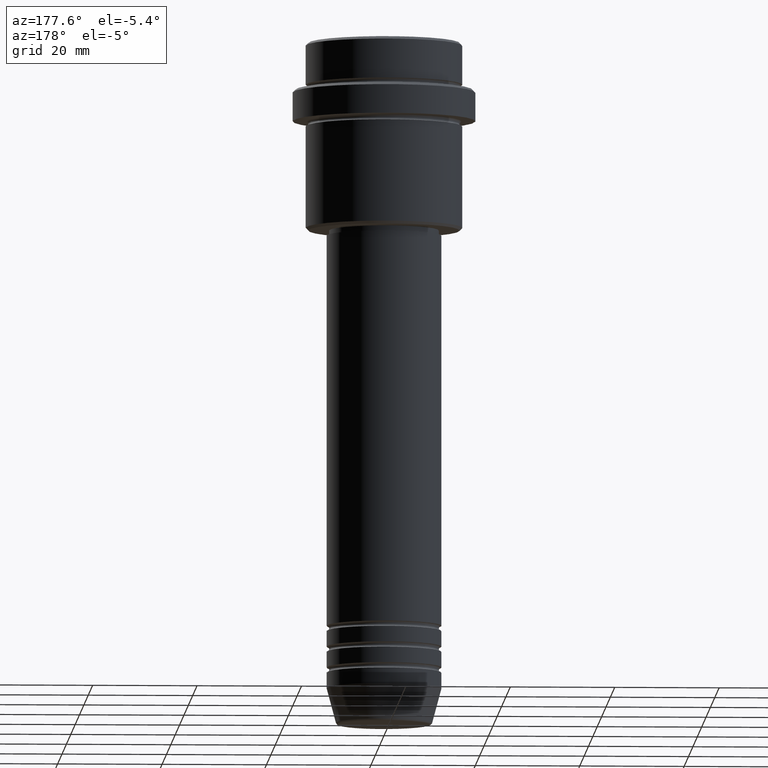
[diagram: clean part render]
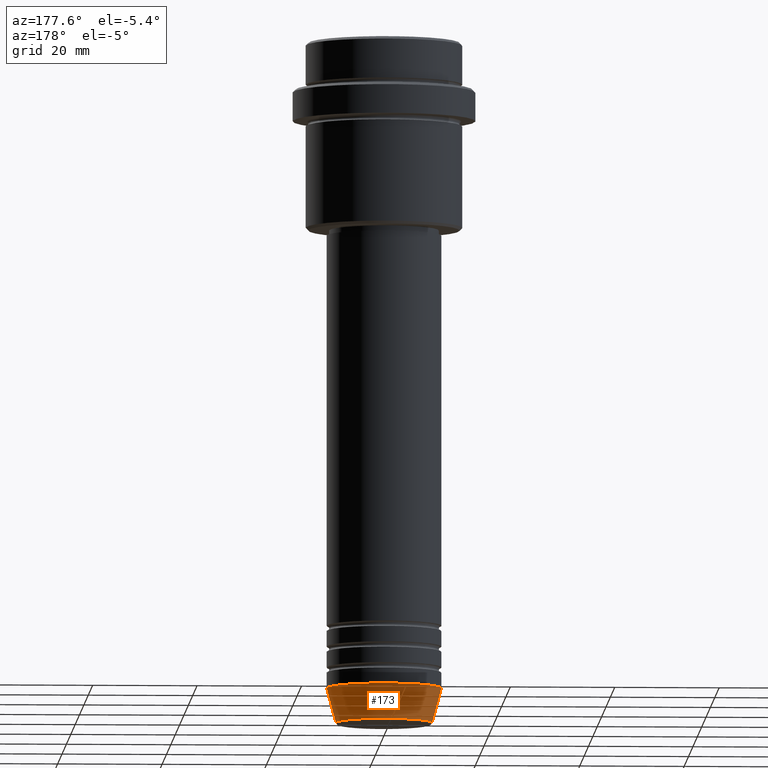
[diagram: same view with one face highlighted and labeled with its STEP entity id]
A machine part, auxiliary view. The second image highlights one B-rep face of the part: STEP entity #173.
In plain terms, the highlighted conical surface has half-angle 15 deg.
Its self-contained STEP definition (entity closure, byte-faithful):
#28 = CARTESIAN_POINT ( 'NONE',  ( 0.000000000000000000, 0.000000000000000000, -124.0000000000000000 ) ) ;
#37 = ORIENTED_EDGE ( 'NONE', *, *, #701, .T. ) ;
#59 = FACE_OUTER_BOUND ( 'NONE', #920, .T. ) ;
#71 = CARTESIAN_POINT ( 'NONE',  ( 9.223655072137187716, 0.000000000000000000, -130.6294095225512422 ) ) ;
#133 = EDGE_CURVE ( 'NONE', #925, #149, #402, .T. ) ;
#140 = CARTESIAN_POINT ( 'NONE',  ( 0.000000000000000000, 0.000000000000000000, -124.0000000000000000 ) ) ;
#149 = VERTEX_POINT ( 'NONE', #581 ) ;
#171 = LINE ( 'NONE', #622, #1289 ) ;
#173 = ADVANCED_FACE ( 'NONE', ( #59 ), #780, .T. ) ;
#191 = AXIS2_PLACEMENT_3D ( 'NONE', #140, #912, #617 ) ;
#236 = DIRECTION ( 'NONE',  ( -0.2588190451025213501, 3.169619151431772337E-17, 0.9659258262890680902 ) ) ;
#245 = AXIS2_PLACEMENT_3D ( 'NONE', #324, #771, #1395 ) ;
#262 = CARTESIAN_POINT ( 'NONE',  ( -9.223655072137187716, 1.238341722557647004E-15, -130.6294095225512422 ) ) ;
#324 = CARTESIAN_POINT ( 'NONE',  ( 0.000000000000000000, 0.000000000000000000, -130.6294095225512422 ) ) ;
#327 = AXIS2_PLACEMENT_3D ( 'NONE', #28, #905, #705 ) ;
#368 = CARTESIAN_POINT ( 'NONE',  ( -11.00000000000000000, 1.347111479062088405E-15, -124.0000000000000000 ) ) ;
#402 = CIRCLE ( 'NONE', #191, 11.00000000000000000 ) ;
#447 = VERTEX_POINT ( 'NONE', #262 ) ;
#521 = CIRCLE ( 'NONE', #245, 9.223655072137187716 ) ;
#580 = VECTOR ( 'NONE', #236, 1000.000000000000000 ) ;
#581 = CARTESIAN_POINT ( 'NONE',  ( -11.00000000000000000, 1.347111479062088405E-15, -124.0000000000000000 ) ) ;
#594 = VERTEX_POINT ( 'NONE', #71 ) ;
#613 = EDGE_CURVE ( 'NONE', #594, #925, #171, .T. ) ;
#617 = DIRECTION ( 'NONE',  ( 1.000000000000000000, 0.000000000000000000, 0.000000000000000000 ) ) ;
#622 = CARTESIAN_POINT ( 'NONE',  ( 11.00000000000000000, 0.000000000000000000, -124.0000000000000000 ) ) ;
#701 = EDGE_CURVE ( 'NONE', #594, #447, #521, .T. ) ;
#705 = DIRECTION ( 'NONE',  ( 1.000000000000000000, 0.000000000000000000, 0.000000000000000000 ) ) ;
#730 = DIRECTION ( 'NONE',  ( 0.2588190451025213501, 0.000000000000000000, 0.9659258262890680902 ) ) ;
#771 = DIRECTION ( 'NONE',  ( -0.000000000000000000, -0.000000000000000000, 1.000000000000000000 ) ) ;
#778 = CARTESIAN_POINT ( 'NONE',  ( 11.00000000000000000, 0.000000000000000000, -124.0000000000000000 ) ) ;
#780 = CONICAL_SURFACE ( 'NONE', #327, 11.00000000000000000, 0.2617993877991500740 ) ;
#905 = DIRECTION ( 'NONE',  ( -0.000000000000000000, -0.000000000000000000, 1.000000000000000000 ) ) ;
#912 = DIRECTION ( 'NONE',  ( -0.000000000000000000, -0.000000000000000000, 1.000000000000000000 ) ) ;
#920 = EDGE_LOOP ( 'NONE', ( #37, #1052, #1163, #1110 ) ) ;
#925 = VERTEX_POINT ( 'NONE', #778 ) ;
#1052 = ORIENTED_EDGE ( 'NONE', *, *, #1300, .T. ) ;
#1110 = ORIENTED_EDGE ( 'NONE', *, *, #613, .F. ) ;
#1163 = ORIENTED_EDGE ( 'NONE', *, *, #133, .F. ) ;
#1214 = LINE ( 'NONE', #368, #580 ) ;
#1289 = VECTOR ( 'NONE', #730, 1000.000000000000000 ) ;
#1300 = EDGE_CURVE ( 'NONE', #447, #149, #1214, .T. ) ;
#1395 = DIRECTION ( 'NONE',  ( 1.000000000000000000, 0.000000000000000000, 0.000000000000000000 ) ) ;